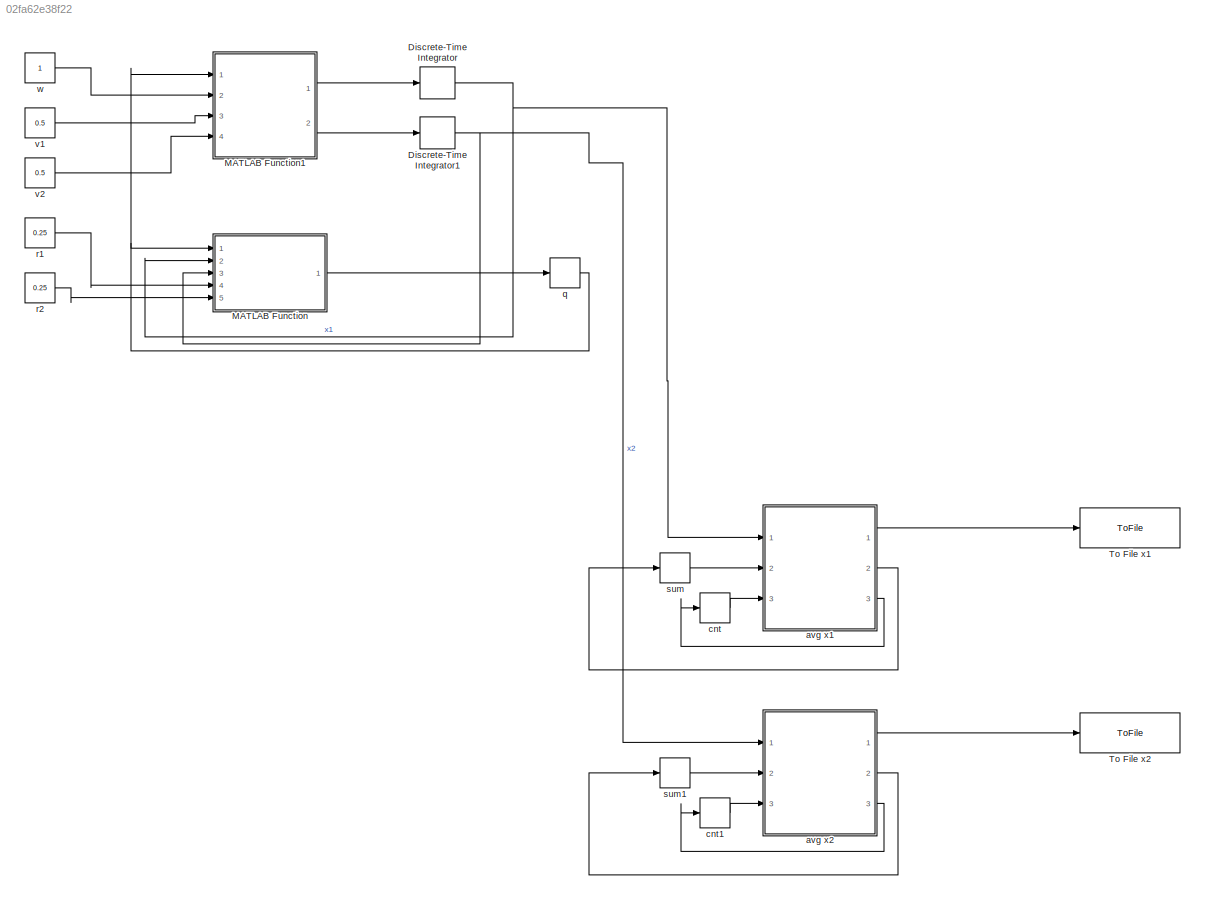
MODEL slx_02fa62e38f22
KIND model
BLOCK [DiscreteIntegrator] Discrete-Time Integrator
  InitialCondition = 0.5
  InitialConditionSetting = State (most efficient)
  Ports = [1, 1]
  SampleTime = -1
BLOCK [DiscreteIntegrator] Discrete-Time Integrator1
  InitialCondition = 0.5
  InitialConditionSetting = State (most efficient)
  Ports = [1, 1]
  SampleTime = -1
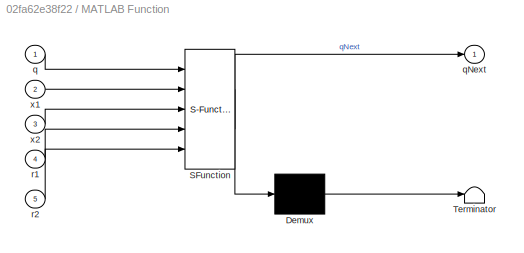
BLOCK [SubSystem] MATLAB Function
  ErrorFcn = Stateflow.Translate.translate
  PermitHierarchicalResolution = ExplicitOnly
  Ports = [5, 1]
  RequestExecContextInheritance = off
  SFBlockType = MATLAB Function
  TreatAsAtomicUnit = on
BLOCK [Demux] MATLAB Function/ Demux 
  Outputs = 1
  Ports = [1, 1]
BLOCK [S-Function] MATLAB Function/ SFunction 
  EnableBusSupport = on
  FunctionName = sf_sfun
  PortCounts = [5 2]
  Ports = [5, 2]
  Tag = Stateflow S-Function switchTank 2
BLOCK [Terminator] MATLAB Function/ Terminator 
BLOCK [Inport] MATLAB Function/q
  IconDisplay = Port number
BLOCK [Outport] MATLAB Function/qNext
  IconDisplay = Port number
BLOCK [Inport] MATLAB Function/r1
  IconDisplay = Port number
  Port = 4
BLOCK [Inport] MATLAB Function/r2
  IconDisplay = Port number
  Port = 5
BLOCK [Inport] MATLAB Function/x1
  IconDisplay = Port number
  Port = 2
BLOCK [Inport] MATLAB Function/x2
  IconDisplay = Port number
  Port = 3
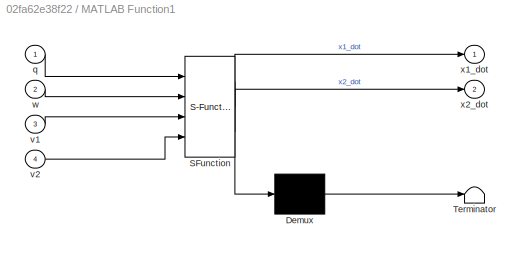
BLOCK [SubSystem] MATLAB Function1
  ErrorFcn = Stateflow.Translate.translate
  PermitHierarchicalResolution = ExplicitOnly
  Ports = [4, 2]
  RequestExecContextInheritance = off
  SFBlockType = MATLAB Function
  TreatAsAtomicUnit = on
BLOCK [Demux] MATLAB Function1/ Demux 
  Outputs = 1
  Ports = [1, 1]
BLOCK [S-Function] MATLAB Function1/ SFunction 
  EnableBusSupport = on
  FunctionName = sf_sfun
  PortCounts = [4 3]
  Ports = [4, 3]
  Tag = Stateflow S-Function switchTank 1
BLOCK [Terminator] MATLAB Function1/ Terminator 
BLOCK [Inport] MATLAB Function1/q
  IconDisplay = Port number
BLOCK [Inport] MATLAB Function1/v1
  IconDisplay = Port number
  Port = 3
BLOCK [Inport] MATLAB Function1/v2
  IconDisplay = Port number
  Port = 4
BLOCK [Inport] MATLAB Function1/w
  IconDisplay = Port number
  Port = 2
BLOCK [Outport] MATLAB Function1/x1_dot
  IconDisplay = Port number
BLOCK [Outport] MATLAB Function1/x2_dot
  IconDisplay = Port number
  Port = 2
BLOCK [ToFile] To File x1
  Decimation = 10000000
  Filename = x1Output.mat
  Ports = [1]
BLOCK [ToFile] To File x2
  Decimation = 10000000
  Filename = x2Output.mat
  Ports = [1]
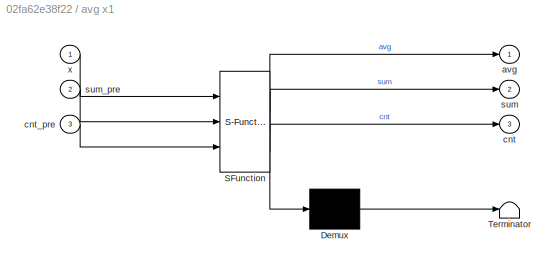
BLOCK [SubSystem] avg x1
  ErrorFcn = Stateflow.Translate.translate
  PermitHierarchicalResolution = ExplicitOnly
  Ports = [3, 3]
  RequestExecContextInheritance = off
  SFBlockType = MATLAB Function
  TreatAsAtomicUnit = on
BLOCK [Demux] avg x1/ Demux 
  Outputs = 1
  Ports = [1, 1]
BLOCK [S-Function] avg x1/ SFunction 
  EnableBusSupport = on
  FunctionName = sf_sfun
  PortCounts = [3 4]
  Ports = [3, 4]
  Tag = Stateflow S-Function switchTank 3
BLOCK [Terminator] avg x1/ Terminator 
BLOCK [Outport] avg x1/avg
  IconDisplay = Port number
BLOCK [Outport] avg x1/cnt
  IconDisplay = Port number
  Port = 3
BLOCK [Inport] avg x1/cnt_pre
  IconDisplay = Port number
  Port = 3
BLOCK [Outport] avg x1/sum
  IconDisplay = Port number
  Port = 2
BLOCK [Inport] avg x1/sum_pre
  IconDisplay = Port number
  Port = 2
BLOCK [Inport] avg x1/x
  IconDisplay = Port number
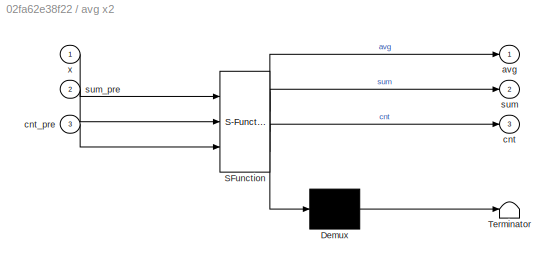
BLOCK [SubSystem] avg x2
  ErrorFcn = Stateflow.Translate.translate
  PermitHierarchicalResolution = ExplicitOnly
  Ports = [3, 3]
  RequestExecContextInheritance = off
  SFBlockType = MATLAB Function
  TreatAsAtomicUnit = on
BLOCK [Demux] avg x2/ Demux 
  Outputs = 1
  Ports = [1, 1]
BLOCK [S-Function] avg x2/ SFunction 
  EnableBusSupport = on
  FunctionName = sf_sfun
  PortCounts = [3 4]
  Ports = [3, 4]
  Tag = Stateflow S-Function switchTank 4
BLOCK [Terminator] avg x2/ Terminator 
BLOCK [Outport] avg x2/avg
  IconDisplay = Port number
BLOCK [Outport] avg x2/cnt
  IconDisplay = Port number
  Port = 3
BLOCK [Inport] avg x2/cnt_pre
  IconDisplay = Port number
  Port = 3
BLOCK [Outport] avg x2/sum
  IconDisplay = Port number
  Port = 2
BLOCK [Inport] avg x2/sum_pre
  IconDisplay = Port number
  Port = 2
BLOCK [Inport] avg x2/x
  IconDisplay = Port number
BLOCK [Memory] cnt
BLOCK [Memory] cnt1
BLOCK [Memory] q
  X0 = 1
BLOCK [Constant] r1
  Value = 0.25
BLOCK [Constant] r2
  Value = 0.25
BLOCK [Memory] sum
BLOCK [Memory] sum1
BLOCK [Constant] v1
  Value = 0.5
BLOCK [Constant] v2
  Value = 0.5
BLOCK [Constant] w
NET Discrete-Time Integrator1:1 -> MATLAB Function:3, avg x2:1
NET Discrete-Time Integrator:1 -> MATLAB Function:2, avg x1:1
LINE MATLAB Function1:1 -> Discrete-Time Integrator:1
LINE MATLAB Function1:2 -> Discrete-Time Integrator1:1
LINE MATLAB Function:1 -> q:1
LINE avg x1:1 -> To File x1:1
LINE avg x1:2 -> sum:1
LINE avg x1:3 -> cnt:1
LINE avg x2:1 -> To File x2:1
LINE avg x2:2 -> sum1:1
LINE avg x2:3 -> cnt1:1
LINE cnt1:1 -> avg x2:3
LINE cnt:1 -> avg x1:3
NET q:1 -> MATLAB Function1:1, MATLAB Function:1
LINE r1:1 -> MATLAB Function:4
LINE r2:1 -> MATLAB Function:5
LINE sum1:1 -> avg x2:2
LINE sum:1 -> avg x1:2
LINE v1:1 -> MATLAB Function1:3
LINE v2:1 -> MATLAB Function1:4
LINE w:1 -> MATLAB Function1:2
note: NET lines group one-source signal fan-out (src -> all destinations, sorted); 1:1 wires keep LINE
CHART MATLAB Function1 states=1 transitions=1
  STATE_LABEL 'eML_blk_kernel()'
  STATE_LABEL 'SCRIPT:\nfunction [x1_dot,x2_dot]= flow(q,w,v1,v2)\n%#codegen\nif q==1 \n    x1_dot = w-v1;\n    x2_dot = -v2;\nelse\n    x1_dot = -v1;\n    x2_dot = w-v2;\nend\n    \n'
CHART MATLAB Function states=1 transitions=1
  STATE_LABEL 'eML_blk_kernel()'
  STATE_LABEL 'SCRIPT:\nfunction qNext = phi(q,x1,x2, r1, r2)\n%#codegen\nif q==1 && x2 < r2\n    qNext=2;\nelseif q==1 && x2 >= r2\n    qNext=1;\nelseif q==2 && x1 < r1\n    qNext=1;\nelseif q==2 && x1 >= r1\n    qNext=2;\nelse\n    qNext=0; %this should never execute\nend\n'
CHART avg x1 states=1 transitions=1
  STATE_LABEL 'eML_blk_kernel()'
  STATE_LABEL 'SCRIPT:\nfunction [avg, sum,cnt] = fcn(x,  sum_pre, cnt_pre)\n%#codegen\n\ncnt=cnt_pre+1;\nsum=sum_pre+x;\navg=sum/cnt;\n'
CHART avg x2 states=1 transitions=1
  STATE_LABEL 'eML_blk_kernel()'
  STATE_LABEL 'SCRIPT:\nfunction [avg, sum,cnt] = fcn(x,  sum_pre, cnt_pre)\n%#codegen\n\ncnt=cnt_pre+1;\nsum=sum_pre+x;\navg=sum/cnt;\n'
